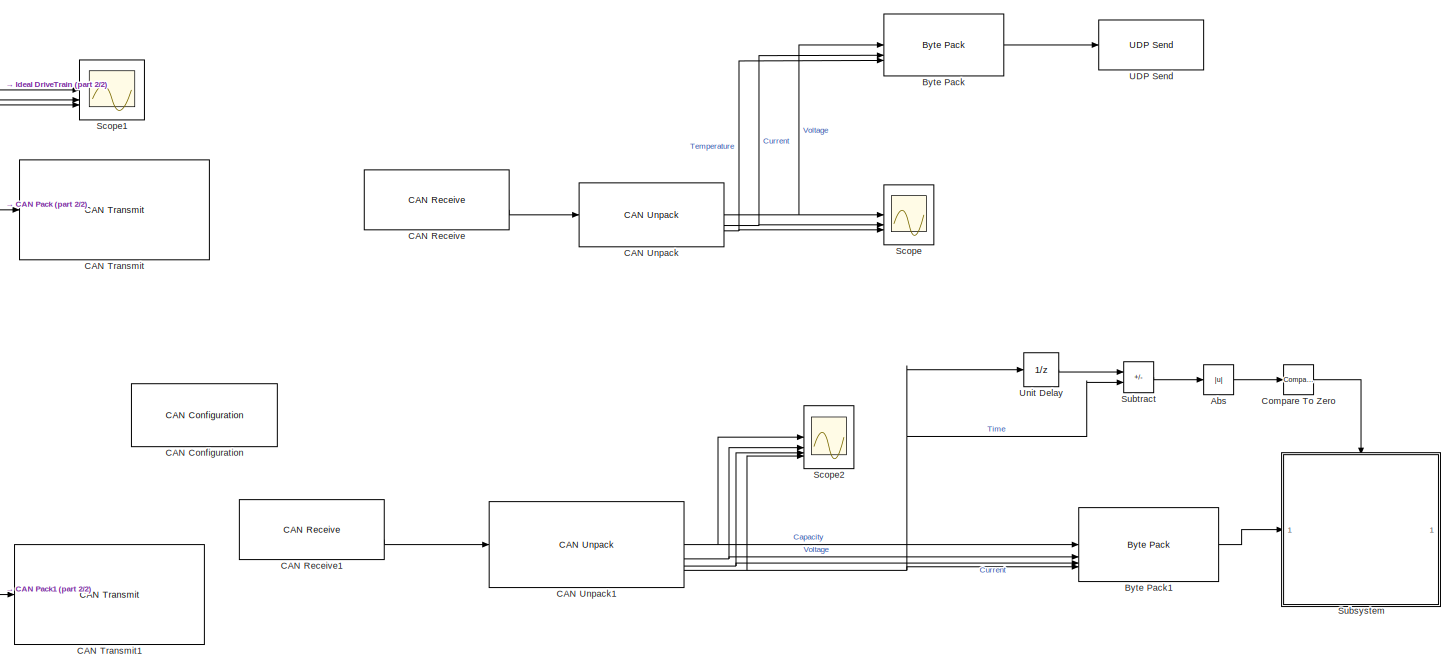
[diagram: root canvas - part 1/2, right side, full height]
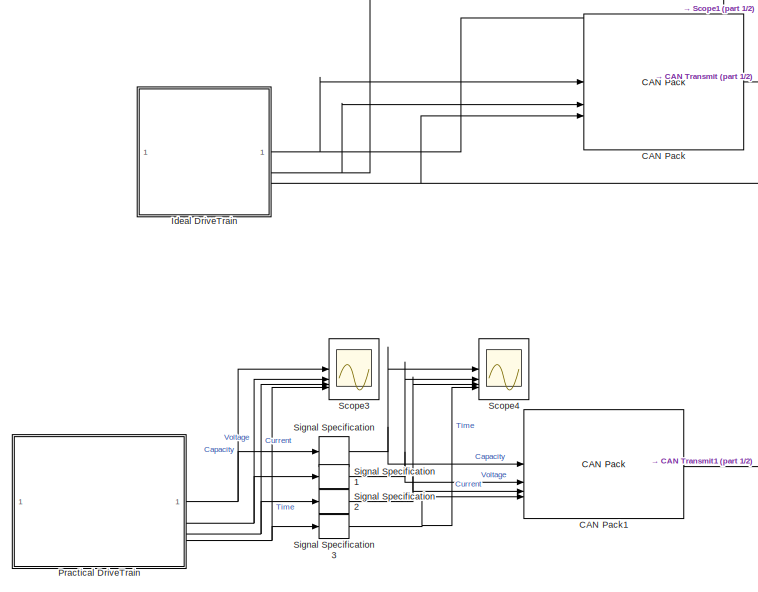
[diagram: root canvas - part 2/2, left side, full height]
MODEL slx_f2f3d86f007e
KIND model
CONFIG AbsTol = auto
CONFIG EnableMultiTasking = off
CONFIG FixedStep = auto
CONFIG MaxStep = auto
CONFIG MinStep = auto
CONFIG RelTol = 1e-3
CONFIG SampleTimeConstraint = Unconstrained
CONFIG SolverName = VariableStepAuto
CONFIG StartTime = 0.0
CONFIG StopTime = 765
BLOCK [Abs] Abs
  SaturateOnIntegerOverflow = off
  ZeroCross = off
BLOCK [Reference] Byte Pack  REF=svdutilitieslib/Byte Pack
  Commented = on
  LibrarySourceBlock = mcblib/Signal Management/Byte Pack
  SourceBlock = svdutilitieslib/Byte Pack
  SourceType = Byte pack
BLOCK [Reference] Byte Pack1  REF=svdutilitieslib/Byte Pack
  LibrarySourceBlock = mcblib/Signal Management/Byte Pack
  SourceBlock = svdutilitieslib/Byte Pack
  SourceType = Byte pack
BLOCK [Reference] CAN Configuration  REF=canlib/CAN Configuration
  SourceBlock = canlib/CAN Configuration
  SourceType = CAN Configuration
BLOCK [Reference] CAN Pack  REF=canmsglib/CAN Pack
  Commented = on
  LibrarySourceBlock = canlib/CAN Pack
  SourceBlock = canmsglib/CAN Pack
  SourceType = CAN Pack
BLOCK [Reference] CAN Pack1  REF=canmsglib/CAN Pack
  LibrarySourceBlock = canlib/CAN Pack
  SourceBlock = canmsglib/CAN Pack
  SourceType = CAN Pack
BLOCK [Reference] CAN Receive  REF=canlib/CAN Receive
  Commented = on
  SourceBlock = canlib/CAN Receive
  SourceType = CAN Receive
BLOCK [Reference] CAN Receive1  REF=canlib/CAN Receive
  SourceBlock = canlib/CAN Receive
  SourceType = CAN Receive
BLOCK [Reference] CAN Transmit  REF=canlib/CAN Transmit
  Commented = on
  SourceBlock = canlib/CAN Transmit
  SourceType = CAN Transmit
BLOCK [Reference] CAN Transmit1  REF=canlib/CAN Transmit
  SourceBlock = canlib/CAN Transmit
  SourceType = CAN Transmit
BLOCK [Reference] CAN Unpack  REF=canmsglib/CAN Unpack
  Commented = on
  LibrarySourceBlock = canlib/CAN Unpack
  SourceBlock = canmsglib/CAN Unpack
  SourceType = CAN Unpack
BLOCK [Reference] CAN Unpack1  REF=canmsglib/CAN Unpack
  LibrarySourceBlock = canlib/CAN Unpack
  SourceBlock = canmsglib/CAN Unpack
  SourceType = CAN Unpack
BLOCK [Reference] Compare To Zero  REF=simulink/Logic and Bit
Operations/Compare
To Zero
  SourceBlock = simulink/Logic and Bit\nOperations/Compare\nTo Zero
  SourceType = Compare To Zero
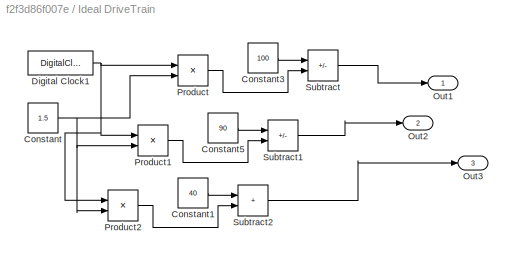
BLOCK [SubSystem] Ideal DriveTrain
  Commented = on
BLOCK [Constant] Ideal DriveTrain/Constant
  Value = 1.5
BLOCK [Constant] Ideal DriveTrain/Constant1
  Value = 40
BLOCK [Constant] Ideal DriveTrain/Constant3
  Value = 100
BLOCK [Constant] Ideal DriveTrain/Constant5
  Value = 90
BLOCK [DigitalClock] Ideal DriveTrain/Digital Clock1
  SampleTime = .001
BLOCK [Outport] Ideal DriveTrain/Out1
BLOCK [Outport] Ideal DriveTrain/Out2
  Port = 2
BLOCK [Outport] Ideal DriveTrain/Out3
  Port = 3
BLOCK [Product] Ideal DriveTrain/Product
BLOCK [Product] Ideal DriveTrain/Product1
BLOCK [Product] Ideal DriveTrain/Product2
BLOCK [Sum] Ideal DriveTrain/Subtract
  IconShape = rectangular
  Inputs = +-
BLOCK [Sum] Ideal DriveTrain/Subtract1
  IconShape = rectangular
  Inputs = +-
BLOCK [Sum] Ideal DriveTrain/Subtract2
  IconShape = rectangular
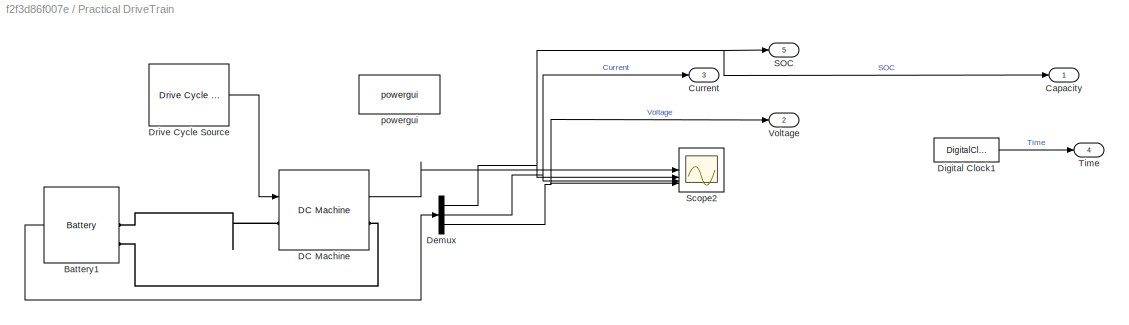
BLOCK [SubSystem] Practical DriveTrain
BLOCK [Reference] Practical DriveTrain/Battery1  REF=spsBatteryLib/Battery
  LibrarySourceBlock = sps_lib/Sources/Battery
  SourceBlock = spsBatteryLib/Battery
  SourceType = Battery
BLOCK [Outport] Practical DriveTrain/Capacity
BLOCK [Outport] Practical DriveTrain/Current
  Port = 3
BLOCK [Reference] Practical DriveTrain/DC Machine  REF=spsDCMachineLib/DC Machine
  LibrarySourceBlock = sps_lib/Electrical Machines/DC Machine
  SourceBlock = spsDCMachineLib/DC Machine
  SourceType = DC machine
BLOCK [Demux] Practical DriveTrain/Demux
  Outputs = 3
BLOCK [DigitalClock] Practical DriveTrain/Digital Clock1
  SampleTime = 0.01
BLOCK [Reference] Practical DriveTrain/Drive Cycle Source  REF=autolibshared/Drive Cycle Source
  AttributesFormatString = %<cycleVar> (%<tfinal>)
  LibrarySourceBlock = autolibscenario/Drive Cycle Source
  SourceBlock = autolibshared/Drive Cycle Source
  SourceType = Drive Cycle Source
BLOCK [Outport] Practical DriveTrain/SOC
  Port = 5
BLOCK [Scope] Practical DriveTrain/Scope2
  Floating = off
  NumInputPorts = 4
  ScopeSpecificationString = Simulink.scopes.TimeScopeBlockCfg('CurrentConfiguration', extmgr.ConfigurationSet(extmgr.Configuration('Core','General UI',true),extmgr.Configuration('Core','Source UI',true),extmgr.Configuration('Sources','WiredSimulink',true,'DataLoggingVariableName','ScopeData1'),extmgr.Configuration('Visuals','Time Domain',true,'SerializedDisplays',{struct('MinYLimReal','-15.20573','MaxYLimReal','29.85293','YL...<+4098ch>
BLOCK [Outport] Practical DriveTrain/Time
  Port = 4
BLOCK [Outport] Practical DriveTrain/Voltage
  Port = 2
BLOCK [Reference] Practical DriveTrain/powergui  REF=sps_lib/powergui
  LibrarySourceBlock = sps_lib/powergui
  Priority = 1
  SourceBlock = sps_lib/powergui
  SourceType = PSB option menu block
BLOCK [Scope] Scope
  Commented = on
  Floating = off
  NumInputPorts = 3
  ScopeSpecificationString = Simulink.scopes.TimeScopeBlockCfg('CurrentConfiguration', extmgr.ConfigurationSet(extmgr.Configuration('Core','General UI',true),extmgr.Configuration('Core','Source UI',true),extmgr.Configuration('Sources','WiredSimulink',true),extmgr.Configuration('Visuals','Time Domain',true,'SerializedDisplays',{struct('MinYLimReal','-12.37625','MaxYLimReal','111.38625','YLabelReal','','MinYLimMag','0.00000','M...<+1528ch>
BLOCK [Scope] Scope1
  Commented = on
  Floating = off
  NumInputPorts = 3
  ScopeSpecificationString = Simulink.scopes.TimeScopeBlockCfg('CurrentConfiguration', extmgr.ConfigurationSet(extmgr.Configuration('Core','General UI',true),extmgr.Configuration('Core','Source UI',true),extmgr.Configuration('Sources','WiredSimulink',true,'DataLoggingVariableName','ScopeData1'),extmgr.Configuration('Visuals','Time Domain',true,'SerializedDisplays',{struct('MinYLimReal','32.5','MaxYLimReal','107.5','YLabelReal...<+1833ch>
BLOCK [Scope] Scope2
  Floating = off
  NumInputPorts = 4
  ScopeSpecificationString = Simulink.scopes.TimeScopeBlockCfg('CurrentConfiguration', extmgr.ConfigurationSet(extmgr.Configuration('Core','General UI',true),extmgr.Configuration('Core','Source UI',true),extmgr.Configuration('Sources','WiredSimulink',true,'DataLoggingVariableName','ScopeData2'),extmgr.Configuration('Visuals','Time Domain',true,'SerializedDisplays',{struct('MinYLimReal','-12.50125','MaxYLimReal','112.51125','Y...<+3818ch>
BLOCK [Scope] Scope3
  Floating = off
  NumInputPorts = 4
  ScopeSpecificationString = Simulink.scopes.TimeScopeBlockCfg('CurrentConfiguration', extmgr.ConfigurationSet(extmgr.Configuration('Core','General UI',true),extmgr.Configuration('Core','Source UI',true),extmgr.Configuration('Sources','WiredSimulink',true,'DataLoggingVariableName','ScopeData3'),extmgr.Configuration('Visuals','Time Domain',true,'SerializedDisplays',{struct('MinYLimReal','30.64495','MaxYLimReal','35.75851','YLa...<+3862ch>
BLOCK [Scope] Scope4
  Floating = off
  NumInputPorts = 4
  ScopeSpecificationString = Simulink.scopes.TimeScopeBlockCfg('CurrentConfiguration', extmgr.ConfigurationSet(extmgr.Configuration('Core','General UI',true),extmgr.Configuration('Core','Source UI',true),extmgr.Configuration('Sources','WiredSimulink',true,'DataLoggingVariableName','ScopeData4'),extmgr.Configuration('Visuals','Time Domain',true,'SerializedDisplays',{struct('MinYLimReal','25.06084','MaxYLimReal','108.32657','YL...<+3819ch>
BLOCK [SignalSpecification] Signal Specification
  SampleTime = 0.01
BLOCK [SignalSpecification] Signal Specification1
  SampleTime = 0.01
BLOCK [SignalSpecification] Signal Specification2
  SampleTime = 0.01
BLOCK [SignalSpecification] Signal Specification3
  SampleTime = 0.01
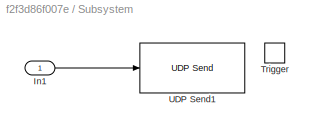
BLOCK [SubSystem] Subsystem
BLOCK [Inport] Subsystem/In1
BLOCK [TriggerPort] Subsystem/Trigger
  PortDimensions = 1
  StatesWhenEnabling = held
  TriggerType = either
  VariantControl = (inherit)
BLOCK [Reference] Subsystem/UDP Send1  REF=dspnetwork/UDP Send
  LibrarySourceBlock = dspsnks4/UDP Send
  SourceBlock = dspnetwork/UDP Send
  SourceType = UDP Send
BLOCK [Sum] Subtract
  IconShape = rectangular
  Inputs = +-
BLOCK [Reference] UDP Send  REF=dspnetwork/UDP Send
  Commented = on
  LibrarySourceBlock = dspsnks4/UDP Send
  SourceBlock = dspnetwork/UDP Send
  SourceType = UDP Send
BLOCK [UnitDelay] Unit Delay
  HasFrameUpgradeWarning = on
  SampleTime = -1
LINE Abs:1 -> Compare To Zero:1
LINE Byte Pack1:1 -> Subsystem:1
LINE Byte Pack:1 -> UDP Send:1
LINE CAN Pack1:1 -> CAN Transmit1:1
LINE CAN Pack:1 -> CAN Transmit:1
LINE CAN Receive1:2 -> CAN Unpack1:1
LINE CAN Receive:2 -> CAN Unpack:1
NET CAN Unpack1:1 -> Byte Pack1:1, Scope2:1
NET CAN Unpack1:2 -> Byte Pack1:2, Scope2:2
NET CAN Unpack1:3 -> Byte Pack1:3, Scope2:3
NET CAN Unpack1:4 -> Byte Pack1:4, Scope2:4, Subtract:2, Unit Delay:1
NET CAN Unpack:1 -> Byte Pack:1, Scope:1
NET CAN Unpack:2 -> Byte Pack:2, Scope:2
NET CAN Unpack:3 -> Byte Pack:3, Scope:3
LINE Compare To Zero:1 -> Subsystem:trigger
LINE Ideal DriveTrain/Constant1:1 -> Ideal DriveTrain/Subtract2:1
LINE Ideal DriveTrain/Constant3:1 -> Ideal DriveTrain/Subtract:1
LINE Ideal DriveTrain/Constant5:1 -> Ideal DriveTrain/Subtract1:1
NET Ideal DriveTrain/Constant:1 -> Ideal DriveTrain/Product1:2, Ideal DriveTrain/Product2:2, Ideal DriveTrain/Product:2
NET Ideal DriveTrain/Digital Clock1:1 -> Ideal DriveTrain/Product1:1, Ideal DriveTrain/Product2:1, Ideal DriveTrain/Product:1
LINE Ideal DriveTrain/Product1:1 -> Ideal DriveTrain/Subtract1:2
LINE Ideal DriveTrain/Product2:1 -> Ideal DriveTrain/Subtract2:2
LINE Ideal DriveTrain/Product:1 -> Ideal DriveTrain/Subtract:2
LINE Ideal DriveTrain/Subtract1:1 -> Ideal DriveTrain/Out2:1
LINE Ideal DriveTrain/Subtract2:1 -> Ideal DriveTrain/Out3:1
LINE Ideal DriveTrain/Subtract:1 -> Ideal DriveTrain/Out1:1
NET Ideal DriveTrain:1 -> CAN Pack:1, Scope1:1
NET Ideal DriveTrain:2 -> CAN Pack:2, Scope1:2
NET Ideal DriveTrain:3 -> CAN Pack:3, Scope1:3
LINE Practical DriveTrain/Battery1:1 -> Practical DriveTrain/Demux:1
LINE Practical DriveTrain/DC Machine:1 -> Practical DriveTrain/Scope2:1
NET Practical DriveTrain/Demux:1 -> Practical DriveTrain/Capacity:1, Practical DriveTrain/SOC:1, Practical DriveTrain/Scope2:2
NET Practical DriveTrain/Demux:2 -> Practical DriveTrain/Current:1, Practical DriveTrain/Scope2:3
NET Practical DriveTrain/Demux:3 -> Practical DriveTrain/Scope2:4, Practical DriveTrain/Voltage:1
LINE Practical DriveTrain/Digital Clock1:1 -> Practical DriveTrain/Time:1
LINE Practical DriveTrain/Drive Cycle Source:1 -> Practical DriveTrain/DC Machine:1
NET Practical DriveTrain:1 -> Scope3:1, Signal Specification:1
NET Practical DriveTrain:2 -> Scope3:2, Signal Specification1:1
NET Practical DriveTrain:3 -> Scope3:3, Signal Specification2:1
NET Practical DriveTrain:4 -> Scope3:4, Signal Specification3:1
NET Signal Specification1:1 -> CAN Pack1:2, Scope4:2
NET Signal Specification2:1 -> CAN Pack1:3, Scope4:3
NET Signal Specification3:1 -> CAN Pack1:4, Scope4:4
NET Signal Specification:1 -> CAN Pack1:1, Scope4:1
LINE Subsystem/In1:1 -> Subsystem/UDP Send1:1
LINE Subtract:1 -> Abs:1
LINE Unit Delay:1 -> Subtract:1
PLINE Practical DriveTrain/Battery1:LConn1 -- Practical DriveTrain/DC Machine:LConn1
PLINE Practical DriveTrain/Battery1:LConn2 -- Practical DriveTrain/DC Machine:RConn1
note: NET lines group one-source signal fan-out (src -> all destinations, sorted); 1:1 wires keep LINE
